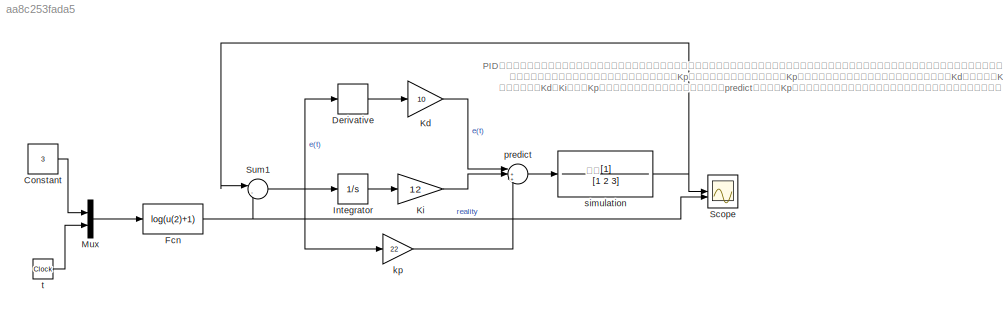
MODEL slx_aa8c253fada5
KIND model
CONFIG AbsTol = auto
CONFIG EnableMultiTasking = off
CONFIG FixedStep = auto
CONFIG MaxStep = auto
CONFIG MinStep = auto
CONFIG RelTol = 1e-3
CONFIG SampleTimeConstraint = Unconstrained
CONFIG SolverName = VariableStepAuto
CONFIG StartTime = 0.0
CONFIG StopTime = 30
BLOCK [Constant] Constant
  Value = 3
BLOCK [Derivative] Derivative
BLOCK [Fcn] Fcn
  Expr = log(u(2)+1)
BLOCK [Integrator] Integrator
BLOCK [Gain] Kd
  Gain = 10
BLOCK [Gain] Ki
  Gain = 12
BLOCK [Mux] Mux
  DisplayOption = bar
  Inputs = 2
BLOCK [Scope] Scope
  Floating = off
  NumInputPorts = 2
  ScopeSpecificationString = Simulink.scopes.TimeScopeBlockCfg('CurrentConfiguration', extmgr.ConfigurationSet(extmgr.Configuration('Core','General UI',true),extmgr.Configuration('Core','Source UI',true),extmgr.Configuration('Sources','WiredSimulink',true),extmgr.Configuration('Visuals','Time Domain',true,'SerializedDisplays',{struct('MinYLimReal','-0.42925','MaxYLimReal','3.86324','YLabelReal','','MinYLimMag','0.00000','MaxY...<+1520ch>
BLOCK [Sum] Sum1
  Inputs = |-+
BLOCK [Gain] kp
  Gain = 22
BLOCK [Sum] predict
  Inputs = |+++
BLOCK [TransferFcn] simulation
  Denominator = [1 2 3]
BLOCK [Clock] t
ANNOTATION (root): PID控制，输入一个连续函数，输出预计值，二者在示波器中进行比较。（注意这里的输入值与输出值的意思分别是：系统中的理想输出与经过控制优化之后的实际输出。输入输出只是相对于PID控制模型而言） 二者做差之后对差值进行优化缩小，其中调节比例系数Kp对控制的影响最大，于是先调节Kp使实际曲线接近于实际曲线，然后再调节微分系数Kd与积分系数Ki。 一些发现：当Kd与Ki大小与Kp接近时，前二者不能为负数，否则会导致predict发散；当Kp趋近无穷大可以几乎完全与实际值重合，但是竟没有出现过补偿的现象?(如果选择常数输入就有)
ANNOTATION (root): 输出
LINE Constant:1 -> Mux:1
LINE Derivative:1 -> Kd:1
NET Fcn:1 -> Scope:2, Sum1:2
LINE Integrator:1 -> Ki:1
LINE Kd:1 -> predict:1
LINE Ki:1 -> predict:2
LINE Mux:1 -> Fcn:1
NET Sum1:1 -> Derivative:1, Integrator:1, kp:1
LINE kp:1 -> predict:3
LINE predict:1 -> simulation:1
NET simulation:1 -> Scope:1, Sum1:1
LINE t:1 -> Mux:2
note: NET lines group one-source signal fan-out (src -> all destinations, sorted); 1:1 wires keep LINE
